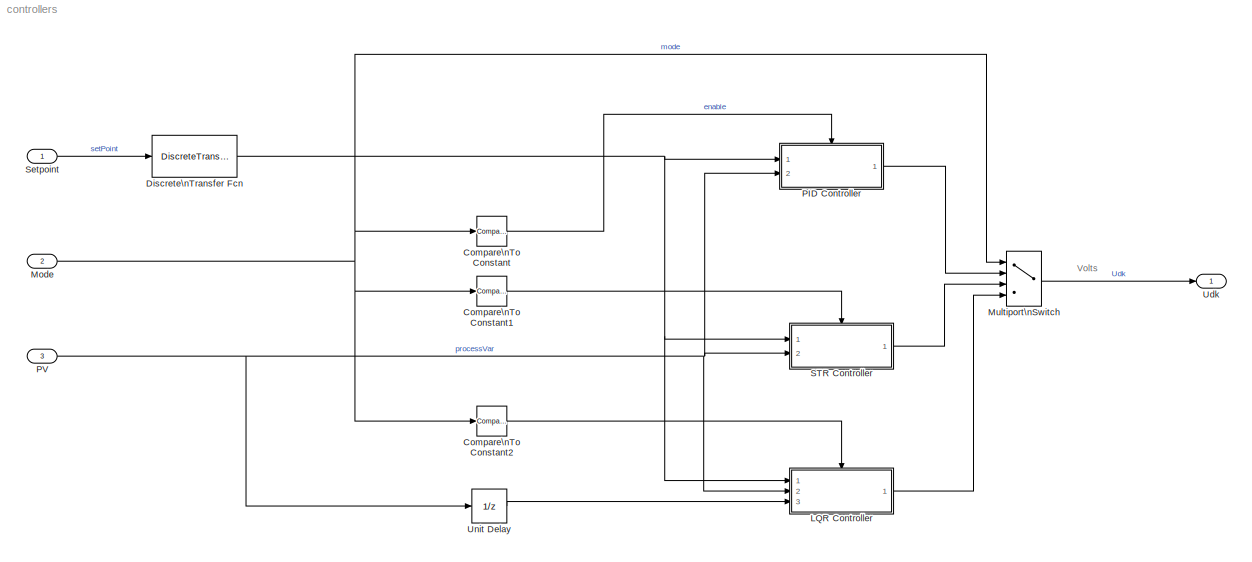
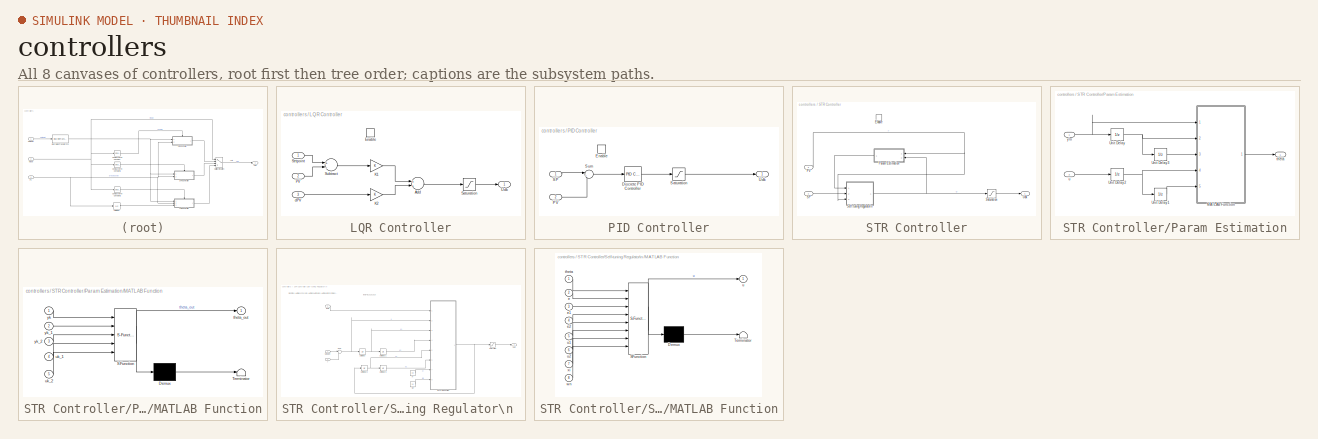
[diagram: thumbnail index - all 8 canvases of the model, root first then tree order]
MODEL controllers
KIND model
BLOCK [Reference] Compare\nTo Constant  REF=simulink/Logic and Bit\nOperations/Compare\nTo Constant
  OutDataTypeStr = boolean
  Ports = [1, 1]
  SID = 23
  SourceBlock = simulink/Logic and Bit\nOperations/Compare\nTo Constant
  SourceProductBaseCode = SL
  SourceProductName = Simulink
  SourceType = Compare To Constant
  ZeroCross = on
  const = 1
  relop = ==
BLOCK [Reference] Compare\nTo Constant1  REF=simulink/Logic and Bit\nOperations/Compare\nTo Constant
  OutDataTypeStr = boolean
  Ports = [1, 1]
  SID = 24
  SourceBlock = simulink/Logic and Bit\nOperations/Compare\nTo Constant
  SourceProductBaseCode = SL
  SourceProductName = Simulink
  SourceType = Compare To Constant
  ZeroCross = on
  const = 2
  relop = ==
BLOCK [Reference] Compare\nTo Constant2  REF=simulink/Logic and Bit\nOperations/Compare\nTo Constant
  OutDataTypeStr = boolean
  Ports = [1, 1]
  SID = 25
  SourceBlock = simulink/Logic and Bit\nOperations/Compare\nTo Constant
  SourceProductBaseCode = SL
  SourceProductName = Simulink
  SourceType = Compare To Constant
  ZeroCross = on
  const = 3
  relop = ==
BLOCK [DiscreteTransferFcn] Discrete\nTransfer Fcn
  Denominator = [1 -0.9512]
  InputPortMap = u0
  Numerator = [0.04877]
  Ports = [1, 1]
  SID = 81
BLOCK [SubSystem] LQR Controller
  Ports = [3, 1, 1]
  RequestExecContextInheritance = off
  SID = 26
BLOCK [Sum] LQR Controller/Add
  InputSameDT = off
  OutDataTypeStr = Inherit: Inherit via internal rule
  Ports = [2, 1]
  SID = 31
  SaturateOnIntegerOverflow = off
BLOCK [EnablePort] LQR Controller/Enable
  Ports = []
  SID = 30
BLOCK [Gain] LQR Controller/K1
  OutDataTypeStr = Inherit: Inherit via internal rule
  ParamDataTypeStr = Inherit: Inherit via internal rule
  SID = 32
  SaturateOnIntegerOverflow = off
BLOCK [Gain] LQR Controller/K2
  OutDataTypeStr = Inherit: Inherit via internal rule
  ParamDataTypeStr = Inherit: Inherit via internal rule
  SID = 33
  SaturateOnIntegerOverflow = off
BLOCK [Inport] LQR Controller/PV
  IconDisplay = Port number
  Port = 2
  SID = 28
BLOCK [Saturate] LQR Controller/Saturation
  InputPortMap = u0
  LowerLimit = -10
  Ports = [1, 1]
  SID = 34
  UpperLimit = 10
BLOCK [Inport] LQR Controller/Setpoint
  IconDisplay = Port number
  SID = 27
BLOCK [Sum] LQR Controller/Subtract
  InputSameDT = off
  Inputs = +-
  OutDataTypeStr = Inherit: Inherit via internal rule
  Ports = [2, 1]
  SID = 35
  SaturateOnIntegerOverflow = off
BLOCK [Outport] LQR Controller/Udk
  IconDisplay = Port number
  SID = 36
BLOCK [Inport] LQR Controller/dPV
  IconDisplay = Port number
  Port = 3
  SID = 29
BLOCK [Inport] Mode
  IconDisplay = Port number
  Port = 2
  SID = 21
BLOCK [MultiPortSwitch] Multiport\nSwitch
  InputSameDT = off
  Ports = [4, 1]
  SID = 37
  SaturateOnIntegerOverflow = off
BLOCK [SubSystem] PID Controller
  Ports = [2, 1, 1]
  RequestExecContextInheritance = off
  SID = 38
BLOCK [Reference] PID Controller/Discrete PID Controller  REF=simulink/Continuous/PID Controller
  AWVariant = Passthrough
  AntiWindupMode = none
  Controller = PID
  ControllerParametersSource = internal
  D = 0
  DGainOutDataTypeStr = Inherit: Inherit via internal rule
  DOutMax = []
  DOutMin = []
  DParamDataTypeStr = Inherit: Inherit via internal rule
  DParamMax = []
  DParamMin = []
  DProdOutDataTypeStr = Inherit: Inherit via internal rule
  DVariant = InternalParameters
  DerivativeFilterVariant = ForwardEulerFilter
  DifferentiatorICPrevScaledInput = 0
  DifferentiatorOutDataTypeStr = Inherit: Inherit via internal rule
  DifferentiatorOutMax = []
  DifferentiatorOutMin = []
  DivideOutDataTypeStr = Inherit: Inherit via internal rule
  DivideOutMax = []
  DivideOutMin = []
  ExternalReset = none
  ExternalResetVariant = Disabled
  FdbkBlocksVariant = Forward
  FilterContinuousStateAttributes = ''
  FilterDiffDenAccumDataTypeStr = Inherit: Inherit via internal rule
  FilterDiffDenProductOutputDataTypeStr = Inherit: Inherit via internal rule
  FilterDiffNumAccumDataTypeStr = Inherit: Inherit via internal rule
  FilterDiffNumProductOutputDataTypeStr = Inherit: Inherit via internal rule
  FilterDiffOutCoefDataTypeStr = Inherit: Inherit via internal rule
  FilterDiffOutCoefMax = []
  FilterDiffOutCoefMin = []
  FilterICVariant = InternalICsFilter
  FilterMethod = Forward Euler
  FilterOutDataTypeStr = Inherit: Inherit via internal rule
  FilterOutMax = []
  FilterOutMin = []
  FilterRTWStateStorageClass = Auto
  FilterStateMustResolveToSignalObject = off
  Form = Parallel
  I = 0.002
  IGainOutDataTypeStr = Inherit: Inherit via internal rule
  IOutMax = []
  IOutMin = []
  IParamDataTypeStr = Inherit: Inherit via internal rule
  IParamMax = []
  IParamMin = []
  IProdOutDataTypeStr = Inherit: Inherit via internal rule
  IVariant = InternalParameters
  IdealPFdbkVariant = Disabled
  IdealPVariant = Disabled
  IgnoreLimit = off
  InitialConditionForFilter = 0
  InitialConditionForIntegrator = 0
  InitialConditionSetting = Auto
  InitialConditionSource = internal
  IntegratorContinuousStateAttributes = ''
  IntegratorICVariant = InternalICs
  IntegratorMethod = Forward Euler
  IntegratorOutDataTypeStr = Inherit: Inherit via internal rule
  IntegratorOutMax = []
  IntegratorOutMin = []
  IntegratorRTWStateStorageClass = Auto
  IntegratorStateMustResolveToSignalObject = off
  IntegratorVariant = Discrete
  Kb = 1
  KbOutDataTypeStr = Inherit: Inherit via internal rule
  KbOutMax = []
  KbOutMin = []
  KbParamDataTypeStr = Inherit: Inherit via internal rule
  KbParamMax = []
  KbParamMin = []
  Kt = 1
  KtOutDataTypeStr = Inherit: Inherit via internal rule
  KtOutMax = []
  KtOutMin = []
  KtParamDataTypeStr = Inherit: Inherit via internal rule
  KtParamMax = []
  KtParamMin = []
  LimitOutput = off
  LinearizeAsGain = off
  LockScale = off
  LowerSaturationLimit = -inf
  N = 100
  NCopyVariant = Disabled
  NGainOutDataTypeStr = Inherit: Inherit via internal rule
  NOutMax = []
  NOutMin = []
  NParamDataTypeStr = Inherit: Inherit via internal rule
  NParamMax = []
  NParamMin = []
  NProdOutDataTypeStr = Inherit: Inherit via internal rule
  NVariant = InternalParameters
  P = 0.1
  PCopyVariant = Disabled
  PGainOutDataTypeStr = Inherit: Inherit via internal rule
  POutMax = []
  POutMin = []
  PParamDataTypeStr = Inherit: Inherit via internal rule
  PParamMax = []
  PParamMin = []
  PProdOutDataTypeStr = Inherit: Inherit via internal rule
  ParallelPVariant = InternalParameters
  Ports = [1, 1]
  ReciprocalOutDataTypeStr = Inherit: Inherit via internal rule
  ReciprocalOutMax = []
  ReciprocalOutMin = []
  RndMeth = Floor
  SID = 42
  SampleTime = -1
  SatFdbkVariant = Disabled
  SatVariant = Disabled
  SaturateOnIntegerOverflow = off
  SaturationOutDataTypeStr = Inherit: Same as input
  SaturationOutMax = []
  SaturationOutMin = []
  SourceBlock = simulink/Continuous/PID Controller
  SourceProductBaseCode = SL
  SourceProductName = Simulink
  SourceType = PID 1dof
  SumAccumDataTypeStr = Inherit: Inherit via internal rule
  SumDAccumDataTypeStr = Inherit: Inherit via internal rule
  SumDOutDataTypeStr = Inherit: Inherit via internal rule
  SumDOutMax = []
  SumDOutMin = []
  SumDenAccumDataTypeStr = Inherit: Inherit via internal rule
  SumDenOutDataTypeStr = Inherit: Inherit via internal rule
  SumDenOutMax = []
  SumDenOutMin = []
  SumFdbkVariant = Disabled
  SumI1AccumDataTypeStr = Inherit: Inherit via internal rule
  SumI1OutDataTypeStr = Inherit: Inherit via internal rule
  SumI1OutMax = []
  SumI1OutMin = []
  SumI2AccumDataTypeStr = Inherit: Inherit via internal rule
  SumI2OutDataTypeStr = Inherit: Inherit via internal rule
  SumI2OutMax = []
  SumI2OutMin = []
  SumI3AccumDataTypeStr = Inherit: Inherit via internal rule
  SumI3OutDataTypeStr = Inherit: Inherit via internal rule
  SumI3OutMax = []
  SumI3OutMin = []
  SumI4AccumDataTypeStr = Inherit: Inherit via internal rule
  SumI4OutDataTypeStr = Inherit: Inherit via internal rule
  SumI4OutMax = []
  SumI4OutMin = []
  SumNumAccumDataTypeStr = Inherit: Inherit via internal rule
  SumNumOutDataTypeStr = Inherit: Inherit via internal rule
  SumNumOutMax = []
  SumNumOutMin = []
  SumOutDataTypeStr = Inherit: Inherit via internal rule
  SumOutMax = []
  SumOutMin = []
  SumVariant = Sum_PID
  TRSumVariant = Passthrough
  TRVariant = Disabled
  TimeDomain = Discrete-time
  TrackingMode = off
  TunerSelectOption = Transfer Function Based (PID Tuner App)
  UpperSaturationLimit = inf
  UseFilter = on
  ZeroCross = on
BLOCK [EnablePort] PID Controller/Enable
  Ports = []
  SID = 41
BLOCK [Inport] PID Controller/PV
  IconDisplay = Port number
  Port = 2
  SID = 40
BLOCK [Inport] PID Controller/SP
  IconDisplay = Port number
  SID = 39
BLOCK [Saturate] PID Controller/Saturation
  InputPortMap = u0
  LowerLimit = -10
  Ports = [1, 1]
  SID = 43
  UpperLimit = 10
BLOCK [Sum] PID Controller/Sum
  IconShape = round
  InputSameDT = off
  Inputs = |+-
  OutDataTypeStr = Inherit: Inherit via internal rule
  Ports = [2, 1]
  SID = 44
  SaturateOnIntegerOverflow = off
BLOCK [Outport] PID Controller/Udk
  IconDisplay = Port number
  SID = 45
BLOCK [Inport] PV
  IconDisplay = Port number
  Port = 3
  SID = 22
BLOCK [SubSystem] STR Controller
  Ports = [2, 1, 1]
  RequestExecContextInheritance = off
  SID = 46
BLOCK [EnablePort] STR Controller/Enable
  Ports = []
  SID = 49
BLOCK [Inport] STR Controller/PV
  IconDisplay = Port number
  Port = 2
  SID = 48
BLOCK [SubSystem] STR Controller/Param Estimation
  Ports = [2, 1]
  RequestExecContextInheritance = off
  SID = 50
BLOCK [SubSystem] STR Controller/Param Estimation/MATLAB Function
  ErrorFcn = Stateflow.Translate.translate
  PermitHierarchicalResolution = ExplicitOnly
  Ports = [5, 1]
  RequestExecContextInheritance = off
  SFBlockType = MATLAB Function
  SID = 53
  TreatAsAtomicUnit = on
BLOCK [Demux] STR Controller/Param Estimation/MATLAB Function/ Demux 
  Outputs = 1
  Ports = [1, 1]
  SID = 53::25
BLOCK [S-Function] STR Controller/Param Estimation/MATLAB Function/ SFunction 
  EnableBusSupport = on
  FunctionName = sf_sfun
  PortCounts = [5 2]
  Ports = [5, 2]
  SFcnIsStateOwnerBlock = off
  SFunctionDeploymentMode = off
  SID = 53::24
  Tag = Stateflow S-Function controllers 2
BLOCK [Terminator] STR Controller/Param Estimation/MATLAB Function/ Terminator 
  SID = 53::26
BLOCK [Outport] STR Controller/Param Estimation/MATLAB Function/theta_out
  IconDisplay = Port number
  SID = 53::5
BLOCK [Inport] STR Controller/Param Estimation/MATLAB Function/uk_1
  IconDisplay = Port number
  Port = 4
  SID = 53::1
BLOCK [Inport] STR Controller/Param Estimation/MATLAB Function/uk_2
  IconDisplay = Port number
  Port = 5
  SID = 53::22
BLOCK [Inport] STR Controller/Param Estimation/MATLAB Function/yk
  IconDisplay = Port number
  SID = 53::28
BLOCK [Inport] STR Controller/Param Estimation/MATLAB Function/yk_1
  IconDisplay = Port number
  Port = 2
  SID = 53::23
BLOCK [Inport] STR Controller/Param Estimation/MATLAB Function/yk_2
  IconDisplay = Port number
  Port = 3
  SID = 53::27
BLOCK [UnitDelay] STR Controller/Param Estimation/Unit Delay
  HasFrameUpgradeWarning = on
  SID = 54
  SampleTime = -1
BLOCK [UnitDelay] STR Controller/Param Estimation/Unit Delay1
  HasFrameUpgradeWarning = on
  SID = 55
  SampleTime = -1
BLOCK [UnitDelay] STR Controller/Param Estimation/Unit Delay2
  HasFrameUpgradeWarning = on
  SID = 56
  SampleTime = -1
BLOCK [UnitDelay] STR Controller/Param Estimation/Unit Delay3
  HasFrameUpgradeWarning = on
  SID = 57
  SampleTime = -1
BLOCK [Outport] STR Controller/Param Estimation/theta
  IconDisplay = Port number
  PortDimensions = 4
  SID = 58
BLOCK [Inport] STR Controller/Param Estimation/u
  IconDisplay = Port number
  Port = 2
  PortDimensions = 1
  SID = 52
BLOCK [Inport] STR Controller/Param Estimation/y\n
  IconDisplay = Port number
  PortDimensions = 1
  SID = 51
BLOCK [Inport] STR Controller/SP
  IconDisplay = Port number
  SID = 47
BLOCK [Saturate] STR Controller/Saturation
  InputPortMap = u0
  LowerLimit = -10
  Ports = [1, 1]
  SID = 59
  UpperLimit = 10
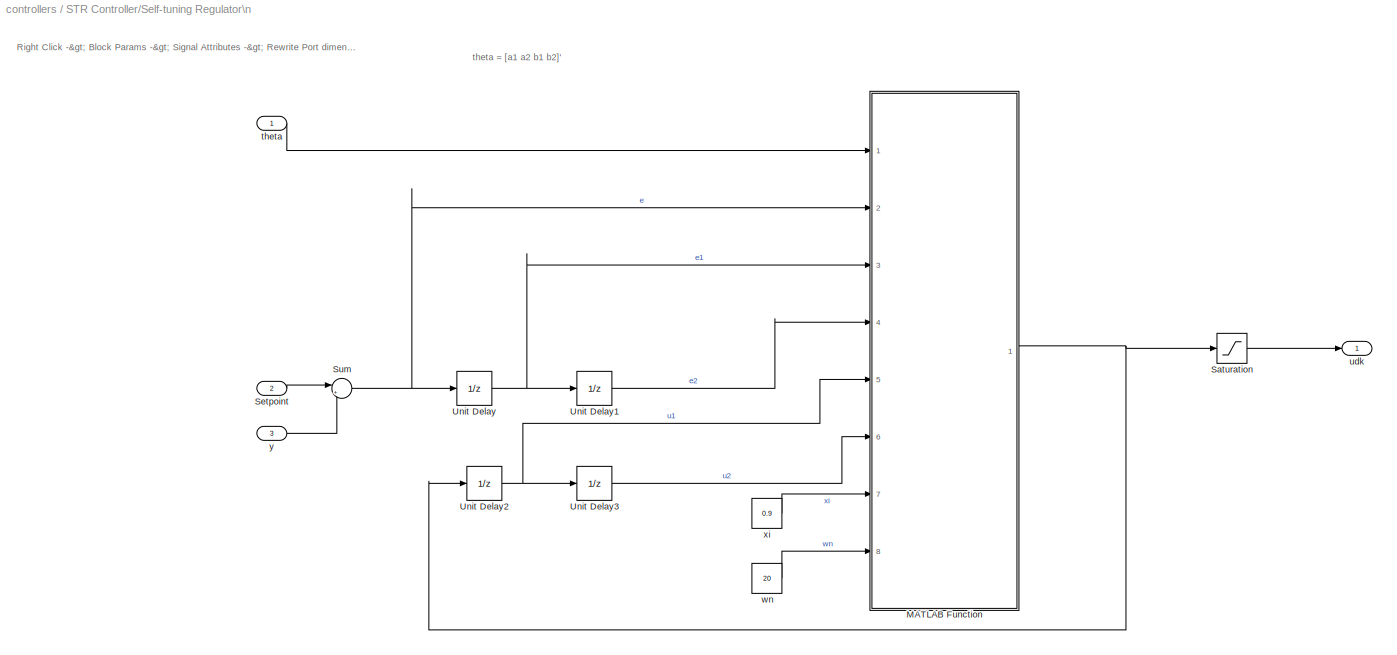
BLOCK [SubSystem] STR Controller/Self-tuning Regulator\n 
  Ports = [3, 1]
  RequestExecContextInheritance = off
  SID = 60
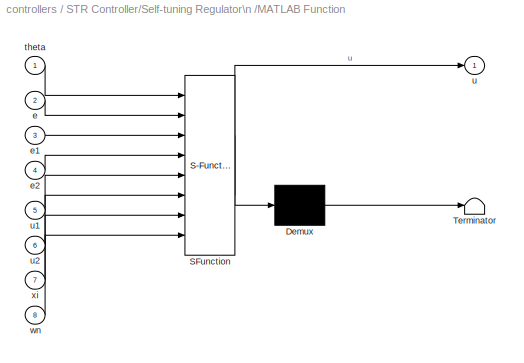
BLOCK [SubSystem] STR Controller/Self-tuning Regulator\n /MATLAB Function
  ErrorFcn = Stateflow.Translate.translate
  PermitHierarchicalResolution = ExplicitOnly
  Ports = [8, 1]
  RequestExecContextInheritance = off
  SFBlockType = MATLAB Function
  SID = 64
  TreatAsAtomicUnit = on
BLOCK [Demux] STR Controller/Self-tuning Regulator\n /MATLAB Function/ Demux 
  Outputs = 1
  Ports = [1, 1]
  SID = 64::20
BLOCK [S-Function] STR Controller/Self-tuning Regulator\n /MATLAB Function/ SFunction 
  EnableBusSupport = on
  FunctionName = sf_sfun
  PortCounts = [8 2]
  Ports = [8, 2]
  SFcnIsStateOwnerBlock = off
  SFunctionDeploymentMode = off
  SID = 64::19
  Tag = Stateflow S-Function controllers 1
BLOCK [Terminator] STR Controller/Self-tuning Regulator\n /MATLAB Function/ Terminator 
  SID = 64::21
BLOCK [Inport] STR Controller/Self-tuning Regulator\n /MATLAB Function/e
  IconDisplay = Port number
  Port = 2
  SID = 64::22
BLOCK [Inport] STR Controller/Self-tuning Regulator\n /MATLAB Function/e1
  IconDisplay = Port number
  Port = 3
  SID = 64::23
BLOCK [Inport] STR Controller/Self-tuning Regulator\n /MATLAB Function/e2
  IconDisplay = Port number
  Port = 4
  SID = 64::26
BLOCK [Inport] STR Controller/Self-tuning Regulator\n /MATLAB Function/theta
  IconDisplay = Port number
  SID = 64::1
BLOCK [Outport] STR Controller/Self-tuning Regulator\n /MATLAB Function/u
  IconDisplay = Port number
  SID = 64::5
BLOCK [Inport] STR Controller/Self-tuning Regulator\n /MATLAB Function/u1
  IconDisplay = Port number
  Port = 5
  SID = 64::27
BLOCK [Inport] STR Controller/Self-tuning Regulator\n /MATLAB Function/u2
  IconDisplay = Port number
  Port = 6
  SID = 64::28
BLOCK [Inport] STR Controller/Self-tuning Regulator\n /MATLAB Function/wn
  IconDisplay = Port number
  Port = 8
  SID = 64::30
BLOCK [Inport] STR Controller/Self-tuning Regulator\n /MATLAB Function/xi
  IconDisplay = Port number
  Port = 7
  SID = 64::29
BLOCK [Saturate] STR Controller/Self-tuning Regulator\n /Saturation
  InputPortMap = u0
  LowerLimit = -10
  Ports = [1, 1]
  SID = 65
  UpperLimit = 10
BLOCK [Inport] STR Controller/Self-tuning Regulator\n /Setpoint
  IconDisplay = Port number
  Port = 2
  PortDimensions = 1
  SID = 62
BLOCK [Sum] STR Controller/Self-tuning Regulator\n /Sum
  IconShape = round
  InputSameDT = off
  Inputs = |+-
  OutDataTypeStr = Inherit: Inherit via internal rule
  Ports = [2, 1]
  SID = 66
  SaturateOnIntegerOverflow = off
BLOCK [UnitDelay] STR Controller/Self-tuning Regulator\n /Unit Delay
  HasFrameUpgradeWarning = on
  SID = 67
  SampleTime = -1
BLOCK [UnitDelay] STR Controller/Self-tuning Regulator\n /Unit Delay1
  HasFrameUpgradeWarning = on
  SID = 68
  SampleTime = -1
BLOCK [UnitDelay] STR Controller/Self-tuning Regulator\n /Unit Delay2
  HasFrameUpgradeWarning = on
  SID = 69
  SampleTime = -1
BLOCK [UnitDelay] STR Controller/Self-tuning Regulator\n /Unit Delay3
  HasFrameUpgradeWarning = on
  SID = 70
  SampleTime = -1
BLOCK [Inport] STR Controller/Self-tuning Regulator\n /theta
  IconDisplay = Port number
  PortDimensions = 4
  SID = 61
BLOCK [Outport] STR Controller/Self-tuning Regulator\n /udk
  IconDisplay = Port number
  PortDimensions = 1
  SID = 71
BLOCK [Constant] STR Controller/Self-tuning Regulator\n /wn
  SID = 79
  Value = 20
BLOCK [Constant] STR Controller/Self-tuning Regulator\n /xi
  SID = 78
  Value = 0.9
BLOCK [Inport] STR Controller/Self-tuning Regulator\n /y
  IconDisplay = Port number
  Port = 3
  PortDimensions = 1
  SID = 63
BLOCK [Outport] STR Controller/Udk
  IconDisplay = Port number
  SID = 74
BLOCK [Inport] Setpoint
  IconDisplay = Port number
  SID = 20
BLOCK [Outport] Udk
  IconDisplay = Port number
  SID = 76
BLOCK [UnitDelay] Unit Delay
  HasFrameUpgradeWarning = on
  SID = 75
  SampleTime = -1
ANNOTATION (root): Volts
ANNOTATION STR Controller/Self-tuning Regulator\n : \n \n Right Click -> Block Params -> Signal Attributes -> Rewrite Port dimensions
ANNOTATION STR Controller/Self-tuning Regulator\n : theta = [a1 a2 b1 b2]'
LINE Compare\nTo Constant1:1 -> STR Controller:enable
LINE Compare\nTo Constant2:1 -> LQR Controller:enable
LINE Compare\nTo Constant:1 -> PID Controller:enable
NET Discrete\nTransfer Fcn:1 -> LQR Controller:1, PID Controller:1, STR Controller:1
LINE LQR Controller/Add:1 -> LQR Controller/Saturation:1
LINE LQR Controller/K1:1 -> LQR Controller/Add:1
LINE LQR Controller/K2:1 -> LQR Controller/Add:2
LINE LQR Controller/PV:1 -> LQR Controller/Subtract:2
LINE LQR Controller/Saturation:1 -> LQR Controller/Udk:1
LINE LQR Controller/Setpoint:1 -> LQR Controller/Subtract:1
LINE LQR Controller/Subtract:1 -> LQR Controller/K1:1
LINE LQR Controller/dPV:1 -> LQR Controller/K2:1
LINE LQR Controller:1 -> Multiport\nSwitch:4
NET Mode:1 -> Compare\nTo Constant1:1, Compare\nTo Constant2:1, Compare\nTo Constant:1, Multiport\nSwitch:1
LINE Multiport\nSwitch:1 -> Udk:1
LINE PID Controller/Discrete PID Controller:1 -> PID Controller/Saturation:1
LINE PID Controller/PV:1 -> PID Controller/Sum:2
LINE PID Controller/SP:1 -> PID Controller/Sum:1
LINE PID Controller/Saturation:1 -> PID Controller/Udk:1
LINE PID Controller/Sum:1 -> PID Controller/Discrete PID Controller:1
LINE PID Controller:1 -> Multiport\nSwitch:2
NET PV:1 -> LQR Controller:2, PID Controller:2, STR Controller:2, Unit Delay:1
NET STR Controller/PV:1 -> STR Controller/Param Estimation:1, STR Controller/Self-tuning Regulator\n :3
LINE STR Controller/Param Estimation/MATLAB Function/ Demux :1 -> STR Controller/Param Estimation/MATLAB Function/ Terminator :1
LINE STR Controller/Param Estimation/MATLAB Function/ SFunction :1 -> STR Controller/Param Estimation/MATLAB Function/ Demux :1
LINE STR Controller/Param Estimation/MATLAB Function/ SFunction :2 -> STR Controller/Param Estimation/MATLAB Function/theta_out:1
LINE STR Controller/Param Estimation/MATLAB Function/uk_1:1 -> STR Controller/Param Estimation/MATLAB Function/ SFunction :4
LINE STR Controller/Param Estimation/MATLAB Function/uk_2:1 -> STR Controller/Param Estimation/MATLAB Function/ SFunction :5
LINE STR Controller/Param Estimation/MATLAB Function/yk:1 -> STR Controller/Param Estimation/MATLAB Function/ SFunction :1
LINE STR Controller/Param Estimation/MATLAB Function/yk_1:1 -> STR Controller/Param Estimation/MATLAB Function/ SFunction :2
LINE STR Controller/Param Estimation/MATLAB Function/yk_2:1 -> STR Controller/Param Estimation/MATLAB Function/ SFunction :3
LINE STR Controller/Param Estimation/MATLAB Function:1 -> STR Controller/Param Estimation/theta:1
LINE STR Controller/Param Estimation/Unit Delay1:1 -> STR Controller/Param Estimation/MATLAB Function:5
NET STR Controller/Param Estimation/Unit Delay2:1 -> STR Controller/Param Estimation/MATLAB Function:4, STR Controller/Param Estimation/Unit Delay1:1
LINE STR Controller/Param Estimation/Unit Delay3:1 -> STR Controller/Param Estimation/MATLAB Function:3
NET STR Controller/Param Estimation/Unit Delay:1 -> STR Controller/Param Estimation/MATLAB Function:2, STR Controller/Param Estimation/Unit Delay3:1
LINE STR Controller/Param Estimation/u:1 -> STR Controller/Param Estimation/Unit Delay2:1
NET STR Controller/Param Estimation/y\n:1 -> STR Controller/Param Estimation/MATLAB Function:1, STR Controller/Param Estimation/Unit Delay:1
LINE STR Controller/Param Estimation:1 -> STR Controller/Self-tuning Regulator\n :1
LINE STR Controller/SP:1 -> STR Controller/Self-tuning Regulator\n :2
LINE STR Controller/Saturation:1 -> STR Controller/Udk:1
LINE STR Controller/Self-tuning Regulator\n /MATLAB Function/ Demux :1 -> STR Controller/Self-tuning Regulator\n /MATLAB Function/ Terminator :1
LINE STR Controller/Self-tuning Regulator\n /MATLAB Function/ SFunction :1 -> STR Controller/Self-tuning Regulator\n /MATLAB Function/ Demux :1
LINE STR Controller/Self-tuning Regulator\n /MATLAB Function/ SFunction :2 -> STR Controller/Self-tuning Regulator\n /MATLAB Function/u:1
LINE STR Controller/Self-tuning Regulator\n /MATLAB Function/e1:1 -> STR Controller/Self-tuning Regulator\n /MATLAB Function/ SFunction :3
LINE STR Controller/Self-tuning Regulator\n /MATLAB Function/e2:1 -> STR Controller/Self-tuning Regulator\n /MATLAB Function/ SFunction :4
LINE STR Controller/Self-tuning Regulator\n /MATLAB Function/e:1 -> STR Controller/Self-tuning Regulator\n /MATLAB Function/ SFunction :2
LINE STR Controller/Self-tuning Regulator\n /MATLAB Function/theta:1 -> STR Controller/Self-tuning Regulator\n /MATLAB Function/ SFunction :1
LINE STR Controller/Self-tuning Regulator\n /MATLAB Function/u1:1 -> STR Controller/Self-tuning Regulator\n /MATLAB Function/ SFunction :5
LINE STR Controller/Self-tuning Regulator\n /MATLAB Function/u2:1 -> STR Controller/Self-tuning Regulator\n /MATLAB Function/ SFunction :6
LINE STR Controller/Self-tuning Regulator\n /MATLAB Function/wn:1 -> STR Controller/Self-tuning Regulator\n /MATLAB Function/ SFunction :8
LINE STR Controller/Self-tuning Regulator\n /MATLAB Function/xi:1 -> STR Controller/Self-tuning Regulator\n /MATLAB Function/ SFunction :7
NET STR Controller/Self-tuning Regulator\n /MATLAB Function:1 -> STR Controller/Self-tuning Regulator\n /Saturation:1, STR Controller/Self-tuning Regulator\n /Unit Delay2:1
LINE STR Controller/Self-tuning Regulator\n /Saturation:1 -> STR Controller/Self-tuning Regulator\n /udk:1
LINE STR Controller/Self-tuning Regulator\n /Setpoint:1 -> STR Controller/Self-tuning Regulator\n /Sum:1
NET STR Controller/Self-tuning Regulator\n /Sum:1 -> STR Controller/Self-tuning Regulator\n /MATLAB Function:2, STR Controller/Self-tuning Regulator\n /Unit Delay:1
LINE STR Controller/Self-tuning Regulator\n /Unit Delay1:1 -> STR Controller/Self-tuning Regulator\n /MATLAB Function:4
NET STR Controller/Self-tuning Regulator\n /Unit Delay2:1 -> STR Controller/Self-tuning Regulator\n /MATLAB Function:5, STR Controller/Self-tuning Regulator\n /Unit Delay3:1
LINE STR Controller/Self-tuning Regulator\n /Unit Delay3:1 -> STR Controller/Self-tuning Regulator\n /MATLAB Function:6
NET STR Controller/Self-tuning Regulator\n /Unit Delay:1 -> STR Controller/Self-tuning Regulator\n /MATLAB Function:3, STR Controller/Self-tuning Regulator\n /Unit Delay1:1
LINE STR Controller/Self-tuning Regulator\n /theta:1 -> STR Controller/Self-tuning Regulator\n /MATLAB Function:1
LINE STR Controller/Self-tuning Regulator\n /wn:1 -> STR Controller/Self-tuning Regulator\n /MATLAB Function:8
LINE STR Controller/Self-tuning Regulator\n /xi:1 -> STR Controller/Self-tuning Regulator\n /MATLAB Function:7
LINE STR Controller/Self-tuning Regulator\n /y:1 -> STR Controller/Self-tuning Regulator\n /Sum:2
NET STR Controller/Self-tuning Regulator\n :1 -> STR Controller/Param Estimation:2, STR Controller/Saturation:1
LINE STR Controller:1 -> Multiport\nSwitch:3
LINE Setpoint:1 -> Discrete\nTransfer Fcn:1
LINE Unit Delay:1 -> LQR Controller:3
note: NET lines group one-source signal fan-out (src -> all destinations, sorted); 1:1 wires keep LINE
CHART STR Controller/Self-tuning Regulator\n /MATLAB Function states=1 transitions=1
  STATE_LABEL 'eML_blk_kernel()'
CHART STR Controller/Param Estimation/MATLAB Function states=1 transitions=1
  STATE_LABEL 'eML_blk_kernel()'
